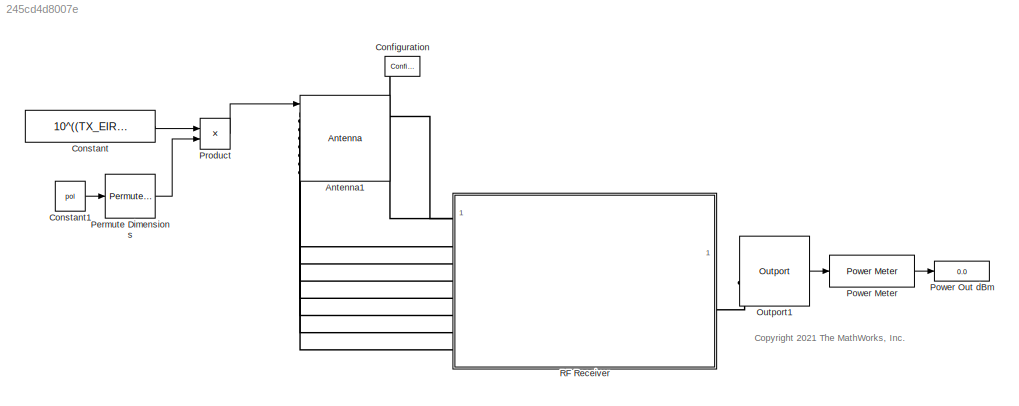
MODEL slx_245cd4d8007e
KIND model
CONFIG AbsTol = auto
CONFIG EnableMultiTasking = off
CONFIG FixedStep = auto
CONFIG MaxStep = auto
CONFIG MinStep = auto
CONFIG PreLoadFcn = % Init values just to make sure that the model is loaded correctly when\n% not run within example script:\nif ~exist('arrayRXObj','var')\n    % General properties:\n    TX_EIRP = 20; % EIRP of transmitter (dBm)\n    CF = 35e9; % Center frequency (Hz)\n    lambda = physconst('lightspeed')/CF; % Wavelength (1/m)\n    d = 100*lambda; % Distance between TX and RX antennas (m)\n    DOA = 0; % Direction of arri...<+951ch>
CONFIG RelTol = 1e-3
CONFIG SampleTimeConstraint = Unconstrained
CONFIG SolverName = FixedStepDiscrete
CONFIG StartTime = 0.0
CONFIG StopTime = 0
BLOCK [Reference] Antenna1  REF=simrfV2elements/Antenna
  SourceBlock = simrfV2elements/Antenna
  SourceType = Antenna
  UserDataPersistent = on
BLOCK [Reference] Configuration  REF=simrfV2util1/Configuration
  SourceBlock = simrfV2util1/Configuration
  SourceType = Configuration
BLOCK [Constant] Constant
  Value = 10^((TX_EIRP -30 - PL)/20)
BLOCK [Constant] Constant1
  Value = pol
BLOCK [Reference] Outport1  REF=simrfV2util1/Outport
  SourceBlock = simrfV2util1/Outport
  SourceType = Outport
BLOCK [PermuteDimensions] Permute Dimensions
  Order = [2,3,1]
BLOCK [Reference] Power Meter  REF=dspstat3/Power Meter
  SourceBlock = dspstat3/Power Meter
  SourceType = dsp.simulink.PowerMeter
BLOCK [Display] Power Out dBm
  Decimation = 1
BLOCK [Product] Product
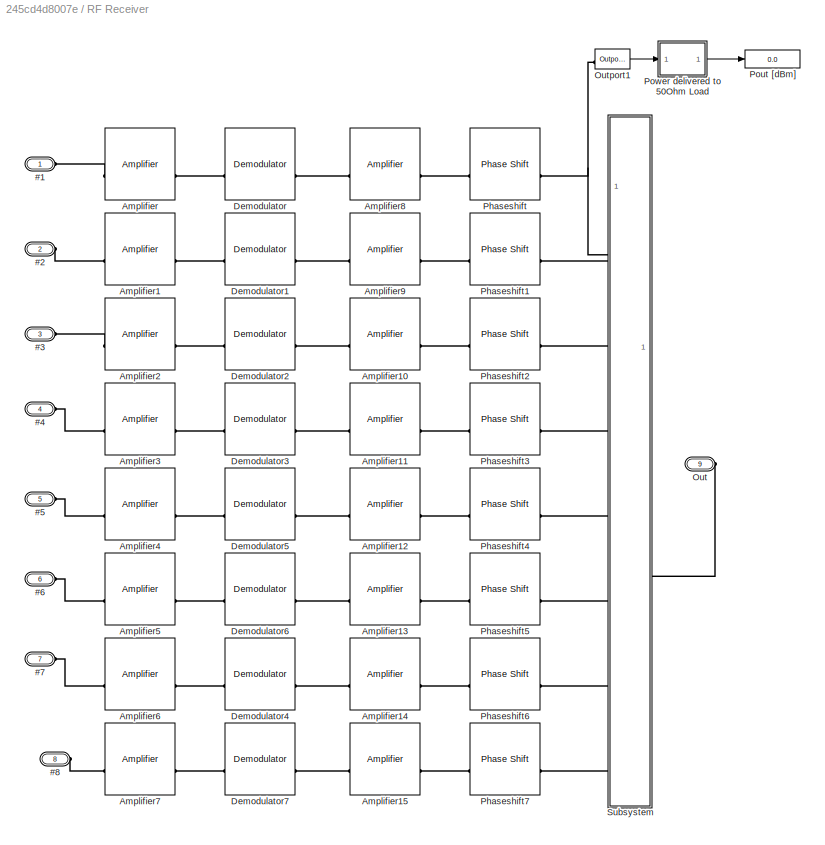
BLOCK [SubSystem] RF Receiver
BLOCK [PMIOPort] RF Receiver/#1
  NameLocation = top
  Side = Left
BLOCK [PMIOPort] RF Receiver/#2
  NameLocation = top
  Port = 2
  Side = Left
BLOCK [PMIOPort] RF Receiver/#3
  NameLocation = top
  Port = 3
  Side = Left
BLOCK [PMIOPort] RF Receiver/#4
  NameLocation = top
  Port = 4
  Side = Left
BLOCK [PMIOPort] RF Receiver/#5
  NameLocation = top
  Port = 5
  Side = Left
BLOCK [PMIOPort] RF Receiver/#6
  NameLocation = top
  Port = 6
  Side = Left
BLOCK [PMIOPort] RF Receiver/#7
  NameLocation = top
  Port = 7
  Side = Left
BLOCK [PMIOPort] RF Receiver/#8
  NameLocation = top
  Port = 8
  Side = Left
BLOCK [Reference] RF Receiver/Amplifier  REF=simrfV2elements/Amplifier
  SourceBlock = simrfV2elements/Amplifier
  SourceType = Amplifier
  UserDataPersistent = on
BLOCK [Reference] RF Receiver/Amplifier1  REF=simrfV2elements/Amplifier
  SourceBlock = simrfV2elements/Amplifier
  SourceType = Amplifier
  UserDataPersistent = on
BLOCK [Reference] RF Receiver/Amplifier10  REF=simrfV2elements/Amplifier
  SourceBlock = simrfV2elements/Amplifier
  SourceType = Amplifier
BLOCK [Reference] RF Receiver/Amplifier11  REF=simrfV2elements/Amplifier
  SourceBlock = simrfV2elements/Amplifier
  SourceType = Amplifier
BLOCK [Reference] RF Receiver/Amplifier12  REF=simrfV2elements/Amplifier
  SourceBlock = simrfV2elements/Amplifier
  SourceType = Amplifier
BLOCK [Reference] RF Receiver/Amplifier13  REF=simrfV2elements/Amplifier
  SourceBlock = simrfV2elements/Amplifier
  SourceType = Amplifier
BLOCK [Reference] RF Receiver/Amplifier14  REF=simrfV2elements/Amplifier
  SourceBlock = simrfV2elements/Amplifier
  SourceType = Amplifier
BLOCK [Reference] RF Receiver/Amplifier15  REF=simrfV2elements/Amplifier
  SourceBlock = simrfV2elements/Amplifier
  SourceType = Amplifier
BLOCK [Reference] RF Receiver/Amplifier2  REF=simrfV2elements/Amplifier
  SourceBlock = simrfV2elements/Amplifier
  SourceType = Amplifier
  UserDataPersistent = on
BLOCK [Reference] RF Receiver/Amplifier3  REF=simrfV2elements/Amplifier
  SourceBlock = simrfV2elements/Amplifier
  SourceType = Amplifier
  UserDataPersistent = on
BLOCK [Reference] RF Receiver/Amplifier4  REF=simrfV2elements/Amplifier
  SourceBlock = simrfV2elements/Amplifier
  SourceType = Amplifier
  UserDataPersistent = on
BLOCK [Reference] RF Receiver/Amplifier5  REF=simrfV2elements/Amplifier
  SourceBlock = simrfV2elements/Amplifier
  SourceType = Amplifier
  UserDataPersistent = on
BLOCK [Reference] RF Receiver/Amplifier6  REF=simrfV2elements/Amplifier
  SourceBlock = simrfV2elements/Amplifier
  SourceType = Amplifier
  UserDataPersistent = on
BLOCK [Reference] RF Receiver/Amplifier7  REF=simrfV2elements/Amplifier
  SourceBlock = simrfV2elements/Amplifier
  SourceType = Amplifier
  UserDataPersistent = on
BLOCK [Reference] RF Receiver/Amplifier8  REF=simrfV2elements/Amplifier
  SourceBlock = simrfV2elements/Amplifier
  SourceType = Amplifier
BLOCK [Reference] RF Receiver/Amplifier9  REF=simrfV2elements/Amplifier
  SourceBlock = simrfV2elements/Amplifier
  SourceType = Amplifier
BLOCK [Reference] RF Receiver/Demodulator  REF=simrfV2systems/Demodulator
  SourceBlock = simrfV2systems/Demodulator
  SourceType = Demodulator
BLOCK [Reference] RF Receiver/Demodulator1  REF=simrfV2systems/Demodulator
  SourceBlock = simrfV2systems/Demodulator
  SourceType = Demodulator
BLOCK [Reference] RF Receiver/Demodulator2  REF=simrfV2systems/Demodulator
  SourceBlock = simrfV2systems/Demodulator
  SourceType = Demodulator
BLOCK [Reference] RF Receiver/Demodulator3  REF=simrfV2systems/Demodulator
  SourceBlock = simrfV2systems/Demodulator
  SourceType = Demodulator
BLOCK [Reference] RF Receiver/Demodulator4  REF=simrfV2systems/Demodulator
  SourceBlock = simrfV2systems/Demodulator
  SourceType = Demodulator
BLOCK [Reference] RF Receiver/Demodulator5  REF=simrfV2systems/Demodulator
  SourceBlock = simrfV2systems/Demodulator
  SourceType = Demodulator
BLOCK [Reference] RF Receiver/Demodulator6  REF=simrfV2systems/Demodulator
  SourceBlock = simrfV2systems/Demodulator
  SourceType = Demodulator
BLOCK [Reference] RF Receiver/Demodulator7  REF=simrfV2systems/Demodulator
  SourceBlock = simrfV2systems/Demodulator
  SourceType = Demodulator
BLOCK [PMIOPort] RF Receiver/Out
  NameLocation = top
  Port = 9
  Side = Right
BLOCK [Reference] RF Receiver/Outport1  REF=simrfV2util1/Outport
  SourceBlock = simrfV2util1/Outport
  SourceType = Outport
BLOCK [Reference] RF Receiver/Phaseshift  REF=simrfV2elements/Phase Shift
  SourceBlock = simrfV2elements/Phase Shift
  SourceType = Phase Shift
BLOCK [Reference] RF Receiver/Phaseshift1  REF=simrfV2elements/Phase Shift
  SourceBlock = simrfV2elements/Phase Shift
  SourceType = Phase Shift
BLOCK [Reference] RF Receiver/Phaseshift2  REF=simrfV2elements/Phase Shift
  SourceBlock = simrfV2elements/Phase Shift
  SourceType = Phase Shift
BLOCK [Reference] RF Receiver/Phaseshift3  REF=simrfV2elements/Phase Shift
  SourceBlock = simrfV2elements/Phase Shift
  SourceType = Phase Shift
BLOCK [Reference] RF Receiver/Phaseshift4  REF=simrfV2elements/Phase Shift
  SourceBlock = simrfV2elements/Phase Shift
  SourceType = Phase Shift
BLOCK [Reference] RF Receiver/Phaseshift5  REF=simrfV2elements/Phase Shift
  SourceBlock = simrfV2elements/Phase Shift
  SourceType = Phase Shift
BLOCK [Reference] RF Receiver/Phaseshift6  REF=simrfV2elements/Phase Shift
  SourceBlock = simrfV2elements/Phase Shift
  SourceType = Phase Shift
BLOCK [Reference] RF Receiver/Phaseshift7  REF=simrfV2elements/Phase Shift
  SourceBlock = simrfV2elements/Phase Shift
  SourceType = Phase Shift
BLOCK [Display] RF Receiver/Pout [dBm]
  Decimation = 1
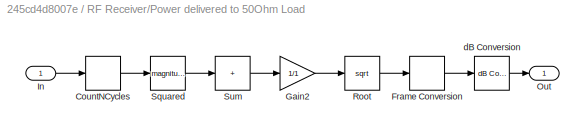
BLOCK [SubSystem] RF Receiver/Power delivered to 50Ohm Load
  NameLocation = top
  ShowPortLabels = none
BLOCK [Buffer] RF Receiver/Power delivered to 50Ohm Load/CountNCycles
  N = 1
BLOCK [FrameConversion] RF Receiver/Power delivered to 50Ohm Load/Frame Conversion
  OutFrame = Sample-based
BLOCK [Gain] RF Receiver/Power delivered to 50Ohm Load/Gain2
  Gain = 1/1
BLOCK [Inport] RF Receiver/Power delivered to 50Ohm Load/In
BLOCK [Outport] RF Receiver/Power delivered to 50Ohm Load/Out
  VectorParamsAs1DForOutWhenUnconnected = off
BLOCK [Sqrt] RF Receiver/Power delivered to 50Ohm Load/Root
BLOCK [Math] RF Receiver/Power delivered to 50Ohm Load/Squared
  Operator = magnitude^2
  SignedPower = on
BLOCK [Sum] RF Receiver/Power delivered to 50Ohm Load/Sum
  CollapseMode = Specified dimension
  IconShape = rectangular
  Inputs = +
BLOCK [Reference] RF Receiver/Power delivered to 50Ohm Load/dB Conversion  REF=dspmathops/dB Conversion
  SourceBlock = dspmathops/dB Conversion
  SourceType = dB Conversion
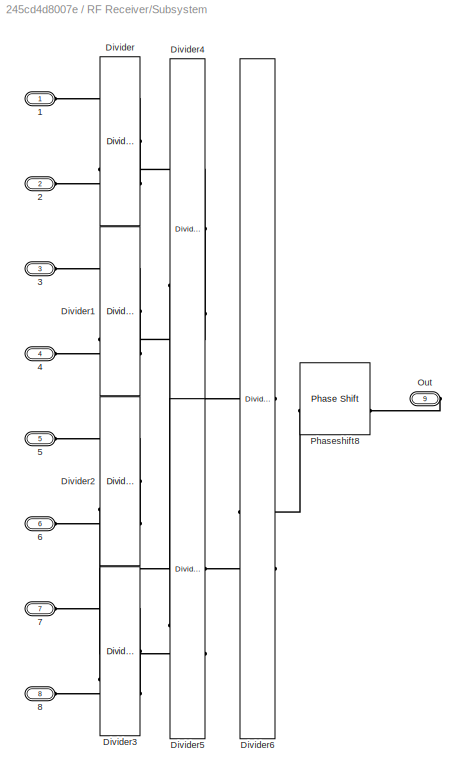
BLOCK [SubSystem] RF Receiver/Subsystem
BLOCK [PMIOPort] RF Receiver/Subsystem/1
  Side = Left
BLOCK [PMIOPort] RF Receiver/Subsystem/2
  Port = 2
  Side = Left
BLOCK [PMIOPort] RF Receiver/Subsystem/3
  Port = 3
  Side = Left
BLOCK [PMIOPort] RF Receiver/Subsystem/4
  Port = 4
  Side = Left
BLOCK [PMIOPort] RF Receiver/Subsystem/5
  Port = 5
  Side = Left
BLOCK [PMIOPort] RF Receiver/Subsystem/6
  Port = 6
  Side = Left
BLOCK [PMIOPort] RF Receiver/Subsystem/7
  Port = 7
  Side = Left
BLOCK [PMIOPort] RF Receiver/Subsystem/8
  Port = 8
  Side = Left
BLOCK [Reference] RF Receiver/Subsystem/Divider  REF=simrfV2junction1/Divider
  NameLocation = top
  SourceBlock = simrfV2junction1/Divider
  SourceType = Ideal Dividers
  UserDataPersistent = on
BLOCK [Reference] RF Receiver/Subsystem/Divider1  REF=simrfV2junction1/Divider
  NameLocation = top
  SourceBlock = simrfV2junction1/Divider
  SourceType = Ideal Dividers
  UserDataPersistent = on
BLOCK [Reference] RF Receiver/Subsystem/Divider2  REF=simrfV2junction1/Divider
  NameLocation = top
  SourceBlock = simrfV2junction1/Divider
  SourceType = Ideal Dividers
  UserDataPersistent = on
BLOCK [Reference] RF Receiver/Subsystem/Divider3  REF=simrfV2junction1/Divider
  NameLocation = top
  SourceBlock = simrfV2junction1/Divider
  SourceType = Ideal Dividers
  UserDataPersistent = on
BLOCK [Reference] RF Receiver/Subsystem/Divider4  REF=simrfV2junction1/Divider
  NameLocation = top
  SourceBlock = simrfV2junction1/Divider
  SourceType = Ideal Dividers
  UserDataPersistent = on
BLOCK [Reference] RF Receiver/Subsystem/Divider5  REF=simrfV2junction1/Divider
  NameLocation = top
  SourceBlock = simrfV2junction1/Divider
  SourceType = Ideal Dividers
  UserDataPersistent = on
BLOCK [Reference] RF Receiver/Subsystem/Divider6  REF=simrfV2junction1/Divider
  NameLocation = top
  SourceBlock = simrfV2junction1/Divider
  SourceType = Ideal Dividers
  UserDataPersistent = on
BLOCK [PMIOPort] RF Receiver/Subsystem/Out
  Port = 9
  Side = Right
BLOCK [Reference] RF Receiver/Subsystem/Phaseshift8  REF=simrfV2elements/Phase Shift
  SourceBlock = simrfV2elements/Phase Shift
  SourceType = Phase Shift
ANNOTATION (root): <copyright redacted>
LINE Constant1:1 -> Permute Dimensions:1
LINE Constant:1 -> Product:1
LINE Outport1:1 -> Power Meter:1
LINE Permute Dimensions:1 -> Product:2
LINE Power Meter:1 -> Power Out dBm:1
LINE Product:1 -> Antenna1:1
LINE RF Receiver/Outport1:1 -> RF Receiver/Power delivered to 50Ohm Load:1
LINE RF Receiver/Power delivered to 50Ohm Load/CountNCycles:1 -> RF Receiver/Power delivered to 50Ohm Load/Squared:1
LINE RF Receiver/Power delivered to 50Ohm Load/Frame Conversion:1 -> RF Receiver/Power delivered to 50Ohm Load/dB Conversion:1
LINE RF Receiver/Power delivered to 50Ohm Load/Gain2:1 -> RF Receiver/Power delivered to 50Ohm Load/Root:1
LINE RF Receiver/Power delivered to 50Ohm Load/In:1 -> RF Receiver/Power delivered to 50Ohm Load/CountNCycles:1
LINE RF Receiver/Power delivered to 50Ohm Load/Root:1 -> RF Receiver/Power delivered to 50Ohm Load/Frame Conversion:1
LINE RF Receiver/Power delivered to 50Ohm Load/Squared:1 -> RF Receiver/Power delivered to 50Ohm Load/Sum:1
LINE RF Receiver/Power delivered to 50Ohm Load/Sum:1 -> RF Receiver/Power delivered to 50Ohm Load/Gain2:1
LINE RF Receiver/Power delivered to 50Ohm Load/dB Conversion:1 -> RF Receiver/Power delivered to 50Ohm Load/Out:1
LINE RF Receiver/Power delivered to 50Ohm Load:1 -> RF Receiver/Pout [dBm]:1
PNET net1: Antenna1:LConn1 -- Configuration:LConn1 -- RF Receiver:LConn1
PLINE Antenna1:LConn2 -- RF Receiver:LConn2
PLINE Antenna1:LConn3 -- RF Receiver:LConn3
PLINE Antenna1:LConn4 -- RF Receiver:LConn4
PLINE Antenna1:LConn5 -- RF Receiver:LConn5
PLINE Antenna1:LConn6 -- RF Receiver:LConn6
PLINE Antenna1:LConn7 -- RF Receiver:LConn7
PLINE Antenna1:LConn8 -- RF Receiver:LConn8
PLINE Outport1:LConn1 -- RF Receiver:RConn1
PLINE RF Receiver/#1:RConn1 -- RF Receiver/Amplifier:LConn1
PLINE RF Receiver/#2:RConn1 -- RF Receiver/Amplifier1:LConn1
PLINE RF Receiver/#3:RConn1 -- RF Receiver/Amplifier2:LConn1
PLINE RF Receiver/#4:RConn1 -- RF Receiver/Amplifier3:LConn1
PLINE RF Receiver/#5:RConn1 -- RF Receiver/Amplifier4:LConn1
PLINE RF Receiver/#6:RConn1 -- RF Receiver/Amplifier5:LConn1
PLINE RF Receiver/#7:RConn1 -- RF Receiver/Amplifier6:LConn1
PLINE RF Receiver/#8:RConn1 -- RF Receiver/Amplifier7:LConn1
PLINE RF Receiver/Amplifier10:LConn1 -- RF Receiver/Demodulator2:RConn1
PLINE RF Receiver/Amplifier10:RConn1 -- RF Receiver/Phaseshift2:LConn1
PLINE RF Receiver/Amplifier11:LConn1 -- RF Receiver/Demodulator3:RConn1
PLINE RF Receiver/Amplifier11:RConn1 -- RF Receiver/Phaseshift3:LConn1
PLINE RF Receiver/Amplifier12:LConn1 -- RF Receiver/Demodulator5:RConn1
PLINE RF Receiver/Amplifier12:RConn1 -- RF Receiver/Phaseshift4:LConn1
PLINE RF Receiver/Amplifier13:LConn1 -- RF Receiver/Demodulator6:RConn1
PLINE RF Receiver/Amplifier13:RConn1 -- RF Receiver/Phaseshift5:LConn1
PLINE RF Receiver/Amplifier14:LConn1 -- RF Receiver/Demodulator4:RConn1
PLINE RF Receiver/Amplifier14:RConn1 -- RF Receiver/Phaseshift6:LConn1
PLINE RF Receiver/Amplifier15:LConn1 -- RF Receiver/Demodulator7:RConn1
PLINE RF Receiver/Amplifier15:RConn1 -- RF Receiver/Phaseshift7:LConn1
PLINE RF Receiver/Amplifier1:RConn1 -- RF Receiver/Demodulator1:LConn1
PLINE RF Receiver/Amplifier2:RConn1 -- RF Receiver/Demodulator2:LConn1
PLINE RF Receiver/Amplifier3:RConn1 -- RF Receiver/Demodulator3:LConn1
PLINE RF Receiver/Amplifier4:RConn1 -- RF Receiver/Demodulator5:LConn1
PLINE RF Receiver/Amplifier5:RConn1 -- RF Receiver/Demodulator6:LConn1
PLINE RF Receiver/Amplifier6:RConn1 -- RF Receiver/Demodulator4:LConn1
PLINE RF Receiver/Amplifier7:RConn1 -- RF Receiver/Demodulator7:LConn1
PLINE RF Receiver/Amplifier8:LConn1 -- RF Receiver/Demodulator:RConn1
PLINE RF Receiver/Amplifier8:RConn1 -- RF Receiver/Phaseshift:LConn1
PLINE RF Receiver/Amplifier9:LConn1 -- RF Receiver/Demodulator1:RConn1
PLINE RF Receiver/Amplifier9:RConn1 -- RF Receiver/Phaseshift1:LConn1
PLINE RF Receiver/Amplifier:RConn1 -- RF Receiver/Demodulator:LConn1
PLINE RF Receiver/Out:RConn1 -- RF Receiver/Subsystem:RConn1
PNET net2: RF Receiver/Outport1:LConn1 -- RF Receiver/Phaseshift:RConn1 -- RF Receiver/Subsystem:LConn1
PLINE RF Receiver/Phaseshift1:RConn1 -- RF Receiver/Subsystem:LConn2
PLINE RF Receiver/Phaseshift2:RConn1 -- RF Receiver/Subsystem:LConn3
PLINE RF Receiver/Phaseshift3:RConn1 -- RF Receiver/Subsystem:LConn4
PLINE RF Receiver/Phaseshift4:RConn1 -- RF Receiver/Subsystem:LConn5
PLINE RF Receiver/Phaseshift5:RConn1 -- RF Receiver/Subsystem:LConn6
PLINE RF Receiver/Phaseshift6:RConn1 -- RF Receiver/Subsystem:LConn7
PLINE RF Receiver/Phaseshift7:RConn1 -- RF Receiver/Subsystem:LConn8
PLINE RF Receiver/Subsystem/1:RConn1 -- RF Receiver/Subsystem/Divider:RConn2
PLINE RF Receiver/Subsystem/2:RConn1 -- RF Receiver/Subsystem/Divider:RConn1
PLINE RF Receiver/Subsystem/3:RConn1 -- RF Receiver/Subsystem/Divider1:RConn2
PLINE RF Receiver/Subsystem/4:RConn1 -- RF Receiver/Subsystem/Divider1:RConn1
PLINE RF Receiver/Subsystem/5:RConn1 -- RF Receiver/Subsystem/Divider2:RConn2
PLINE RF Receiver/Subsystem/6:RConn1 -- RF Receiver/Subsystem/Divider2:RConn1
PLINE RF Receiver/Subsystem/7:RConn1 -- RF Receiver/Subsystem/Divider3:RConn2
PLINE RF Receiver/Subsystem/8:RConn1 -- RF Receiver/Subsystem/Divider3:RConn1
PLINE RF Receiver/Subsystem/Divider1:LConn1 -- RF Receiver/Subsystem/Divider4:RConn1
PLINE RF Receiver/Subsystem/Divider2:LConn1 -- RF Receiver/Subsystem/Divider5:RConn2
PLINE RF Receiver/Subsystem/Divider3:LConn1 -- RF Receiver/Subsystem/Divider5:RConn1
PLINE RF Receiver/Subsystem/Divider4:LConn1 -- RF Receiver/Subsystem/Divider6:RConn2
PLINE RF Receiver/Subsystem/Divider4:RConn2 -- RF Receiver/Subsystem/Divider:LConn1
PLINE RF Receiver/Subsystem/Divider5:LConn1 -- RF Receiver/Subsystem/Divider6:RConn1
PLINE RF Receiver/Subsystem/Divider6:LConn1 -- RF Receiver/Subsystem/Phaseshift8:LConn1
PLINE RF Receiver/Subsystem/Out:RConn1 -- RF Receiver/Subsystem/Phaseshift8:RConn1
note: PNET lines group multi-terminal physical nets as a canonical sorted terminal list (undirected conserving connections); 2-terminal nets keep the pairwise PLINE form
